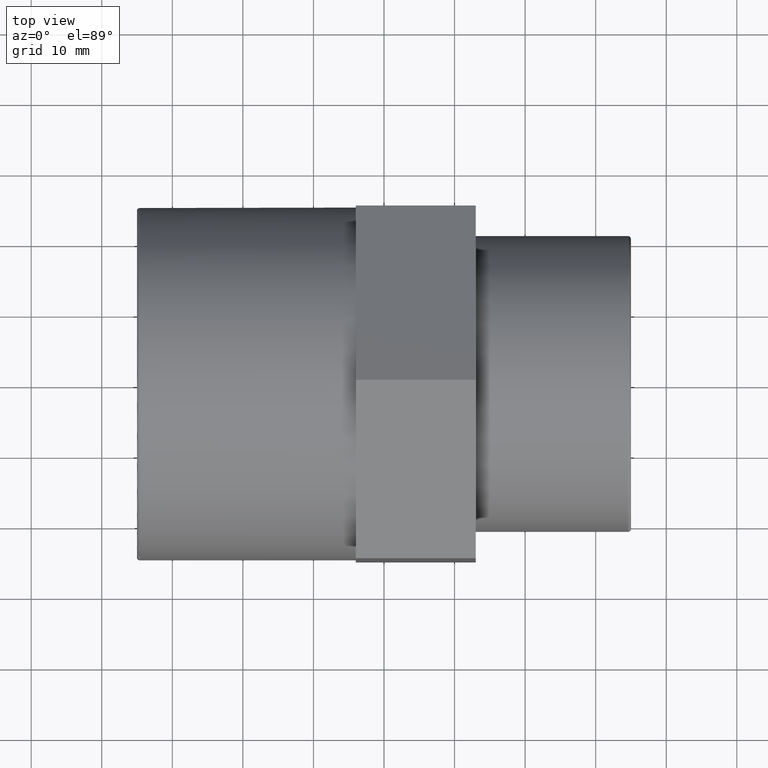
[diagram: clean part render]
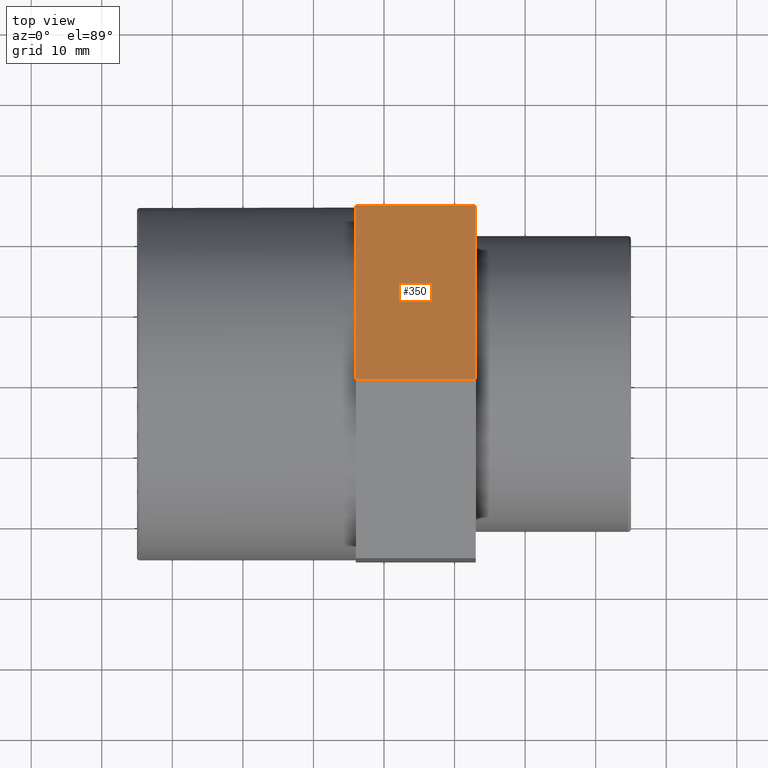
[diagram: same view with one face highlighted and labeled with its STEP entity id]
A machine part, top view. The second image highlights one B-rep face of the part: STEP entity #350.
In plain terms, the highlighted planar face has unit normal (-0, 0.5031, 0.8642).
Its self-contained STEP definition (entity closure, byte-faithful):
#59=FACE_OUTER_BOUND('',#85,.T.);
#85=EDGE_LOOP('',(#255,#256,#257,#258,#259));
#129=LINE('',#553,#153);
#132=LINE('',#559,#156);
#133=LINE('',#561,#157);
#134=LINE('',#563,#158);
#135=LINE('',#564,#159);
#153=VECTOR('',#433,17.);
#156=VECTOR('',#438,28.8675134594813);
#157=VECTOR('',#439,17.);
#158=VECTOR('',#440,14.4337567297406);
#159=VECTOR('',#441,14.4337567297407);
#176=VERTEX_POINT('',#550);
#177=VERTEX_POINT('',#552);
#179=VERTEX_POINT('',#558);
#180=VERTEX_POINT('',#560);
#181=VERTEX_POINT('',#562);
#208=EDGE_CURVE('',#177,#176,#129,.T.);
#211=EDGE_CURVE('',#176,#179,#132,.T.);
#212=EDGE_CURVE('',#180,#179,#133,.T.);
#213=EDGE_CURVE('',#180,#181,#134,.T.);
#214=EDGE_CURVE('',#181,#177,#135,.T.);
#255=ORIENTED_EDGE('',*,*,#211,.T.);
#256=ORIENTED_EDGE('',*,*,#212,.F.);
#257=ORIENTED_EDGE('',*,*,#213,.T.);
#258=ORIENTED_EDGE('',*,*,#214,.T.);
#259=ORIENTED_EDGE('',*,*,#208,.T.);
#333=PLANE('',#378);
#350=ADVANCED_FACE('',(#59),#333,.T.);
#378=AXIS2_PLACEMENT_3D('',#557,#436,#437);
#433=DIRECTION('',(1.,6.9661052525499E-16,0.));
#436=DIRECTION('center_axis',(-3.50486425672891E-16,0.503131108368766,0.864210094705921));
#437=DIRECTION('ref_axis',(6.21724893790088E-16,-0.864210094705921,0.503131108368766));
#438=DIRECTION('',(-5.8209366944984E-16,0.864210094705921,-0.503131108368766));
#439=DIRECTION('',(1.,6.9661052525499E-16,0.));
#440=DIRECTION('',(5.8209366944984E-16,-0.864210094705921,0.503131108368766));
#441=DIRECTION('',(5.8209366944984E-16,-0.864210094705921,0.503131108368766));
#550=CARTESIAN_POINT('',(13.,0.104479438847789,28.8673243890076));
#552=CARTESIAN_POINT('',(-4.00000000000001,0.104479438847777,28.8673243890076));
#553=CARTESIAN_POINT('',(-4.00000000000001,0.104479438847777,28.8673243890076));
#557=CARTESIAN_POINT('Origin',(-4.00000000000003,25.0520759795906,14.3431803462885));
#558=CARTESIAN_POINT('',(13.,25.0520759795906,14.3431803462885));
#559=CARTESIAN_POINT('',(13.,18.8151768444049,17.9742163569683));
#560=CARTESIAN_POINT('',(-4.00000000000003,25.0520759795906,14.3431803462885));
#561=CARTESIAN_POINT('',(-4.00000000000003,25.0520759795906,14.3431803462885));
#562=CARTESIAN_POINT('',(-4.00000000000002,12.5782777092192,21.605252367648));
#563=CARTESIAN_POINT('',(-4.00000000000003,25.0520759795906,14.3431803462885));
#564=CARTESIAN_POINT('',(-4.00000000000003,25.0520759795906,14.3431803462885));